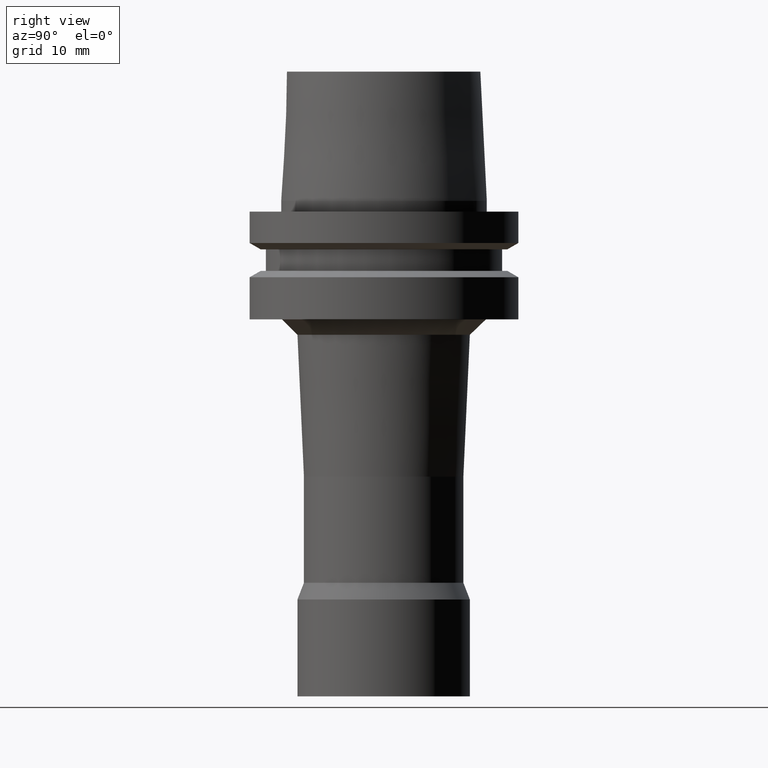
[diagram: clean part render]
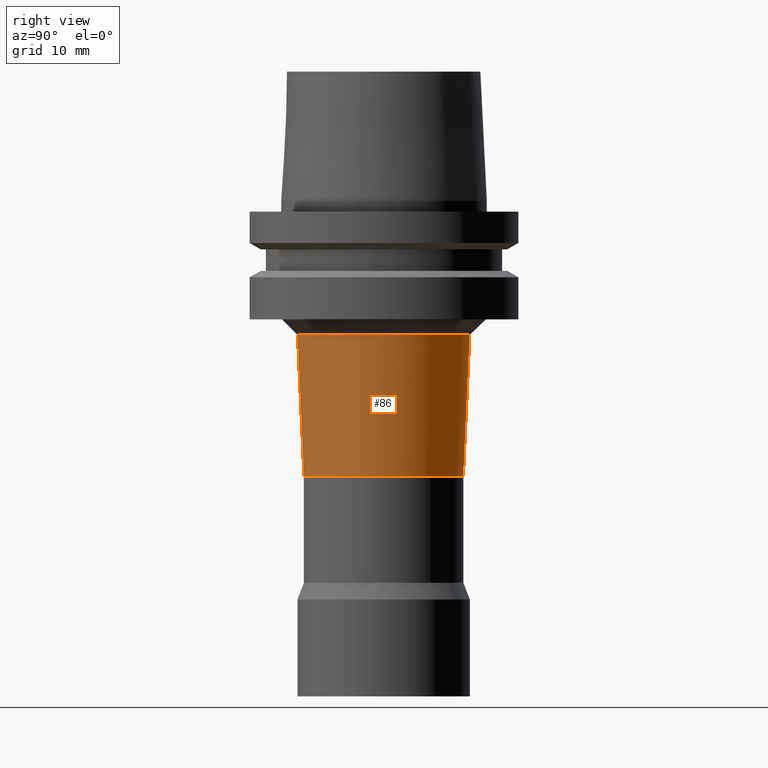
[diagram: same view with one face highlighted and labeled with its STEP entity id]
A machine part, right view. The second image highlights one B-rep face of the part: STEP entity #86.
In plain terms, the highlighted conical surface has half-angle 2.607 deg.
Its self-contained STEP definition (entity closure, byte-faithful):
#86=ADVANCED_FACE('',(#127,#128),#129,.T.);
#127=FACE_BOUND('',#179,.T.);
#128=FACE_BOUND('',#180,.T.);
#129=CONICAL_SURFACE('',#181,7.69965702516976,0.0454965695104514);
#179=EDGE_LOOP('',(#253));
#180=EDGE_LOOP('',(#254));
#181=AXIS2_PLACEMENT_3D('',#255,#256,#257);
#253=ORIENTED_EDGE('',*,*,#298,.F.);
#254=ORIENTED_EDGE('',*,*,#297,.T.);
#255=CARTESIAN_POINT('',(1.10301480963518E-015,2.20602961927036E-015,-18.0135988662714));
#256=DIRECTION('',(-6.12323399573677E-017,-1.22464679914735E-016,1.0));
#257=DIRECTION('',(-1.23259516440783E-032,1.0,1.22464679914735E-016));
#297=EDGE_CURVE('',#325,#325,#326,.T.);
#298=EDGE_CURVE('',#327,#327,#328,.T.);
#325=VERTEX_POINT('',#359);
#326=CIRCLE('',#360,7.99931405033951);
#327=VERTEX_POINT('',#361);
#328=CIRCLE('',#362,7.4);
#359=CARTESIAN_POINT('',(6.99994558606844E-016,7.99931405033952,-11.4317786825427));
#360=AXIS2_PLACEMENT_3D('',#404,#405,#406);
#361=CARTESIAN_POINT('',(1.50603506066352E-015,7.4,-24.59541905));
#362=AXIS2_PLACEMENT_3D('',#407,#408,#409);
#404=CARTESIAN_POINT('',(6.99994558606844E-016,1.39998911721369E-015,-11.4317786825427));
#405=DIRECTION('',(6.12323399573677E-017,1.22464679914735E-016,-1.0));
#406=DIRECTION('',(-1.23259516440783E-032,1.0,1.22464679914735E-016));
#407=CARTESIAN_POINT('',(1.50603506066352E-015,3.01207012132703E-015,-24.59541905));
#408=DIRECTION('',(6.12323399573677E-017,1.22464679914735E-016,-1.0));
#409=DIRECTION('',(-1.23259516440783E-032,1.0,1.22464679914735E-016));